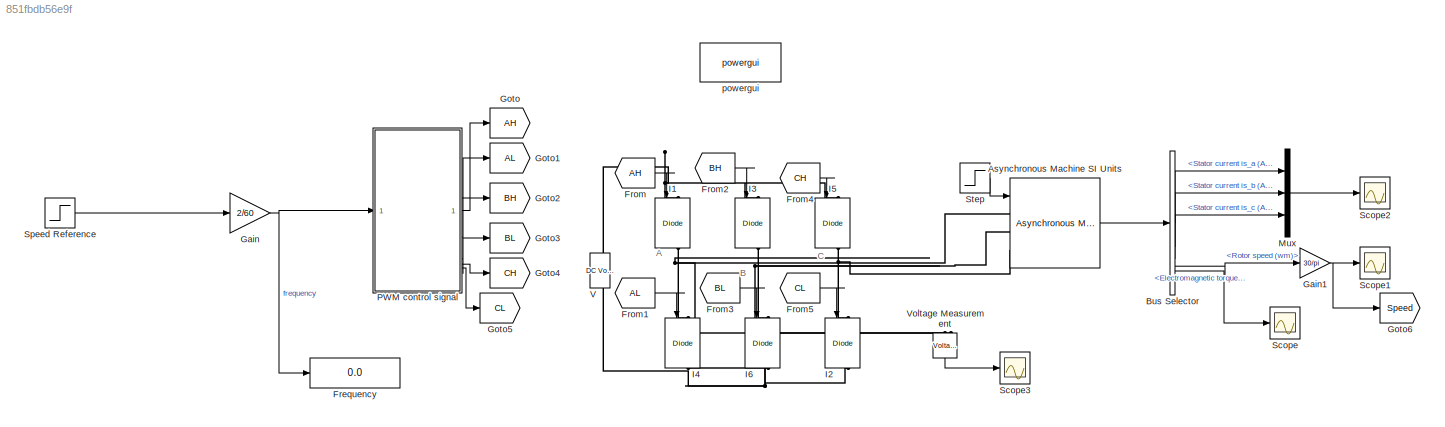
MODEL slx_851fbdb56e9f
KIND model
CONFIG AbsTol = auto
CONFIG EnableMultiTasking = off
CONFIG FixedStep = auto
CONFIG MaxStep = 5e-6
CONFIG MinStep = auto
CONFIG RelTol = 1e-3
CONFIG SampleTimeConstraint = Unconstrained
CONFIG SolverName = ode23
CONFIG StartTime = 0.0
CONFIG StopTime = 6
BLOCK [Reference] Asynchronous Machine SI Units  REF=spsAsynchronousMachineSIUnitsLib/Asynchronous Machine
SI Units
  LibrarySourceBlock = sps_lib/Electrical Machines/Asynchronous Machine\nSI Units
  SourceBlock = spsAsynchronousMachineSIUnitsLib/Asynchronous Machine\nSI Units
  SourceType = Asynchronous Machine
BLOCK [BusSelector] Bus Selector
  OutputSignals = Stator measurements.Stator current is_a (A),Stator measurements.Stator current is_b (A),Stator measurements.Stator current is_c (A),Mechanical.Rotor speed (wm),Mechanical.Electromagnetic torque Te (N*m)
BLOCK [Display] Frequency
  Decimation = 1
BLOCK [From] From
  GotoTag = AH
BLOCK [From] From1
  GotoTag = AL
BLOCK [From] From2
  GotoTag = BH
BLOCK [From] From3
  GotoTag = BL
BLOCK [From] From4
  GotoTag = CH
BLOCK [From] From5
  GotoTag = CL
BLOCK [Gain] Gain
  Gain = 2/60
BLOCK [Gain] Gain1
  Gain = 30/pi
BLOCK [Goto] Goto
  GotoTag = AH
BLOCK [Goto] Goto1
  GotoTag = AL
BLOCK [Goto] Goto2
  GotoTag = BH
BLOCK [Goto] Goto3
  GotoTag = BL
BLOCK [Goto] Goto4
  GotoTag = CH
BLOCK [Goto] Goto5
  GotoTag = CL
BLOCK [Goto] Goto6
  GotoTag = Speed
BLOCK [Reference] I1  REF=spsIGBTDiodeLib/IGBT//Diode
  LibrarySourceBlock = sps_lib/Power Electronics/IGBT//Diode
  NameLocation = left
  SourceBlock = spsIGBTDiodeLib/IGBT//Diode
  SourceType = IGBT/Diode
BLOCK [Reference] I2  REF=spsIGBTDiodeLib/IGBT//Diode
  LibrarySourceBlock = sps_lib/Power Electronics/IGBT//Diode
  NameLocation = left
  SourceBlock = spsIGBTDiodeLib/IGBT//Diode
  SourceType = IGBT/Diode
BLOCK [Reference] I3  REF=spsIGBTDiodeLib/IGBT//Diode
  LibrarySourceBlock = sps_lib/Power Electronics/IGBT//Diode
  NameLocation = left
  SourceBlock = spsIGBTDiodeLib/IGBT//Diode
  SourceType = IGBT/Diode
BLOCK [Reference] I4  REF=spsIGBTDiodeLib/IGBT//Diode
  LibrarySourceBlock = sps_lib/Power Electronics/IGBT//Diode
  NameLocation = left
  SourceBlock = spsIGBTDiodeLib/IGBT//Diode
  SourceType = IGBT/Diode
BLOCK [Reference] I5  REF=spsIGBTDiodeLib/IGBT//Diode
  LibrarySourceBlock = sps_lib/Power Electronics/IGBT//Diode
  NameLocation = left
  SourceBlock = spsIGBTDiodeLib/IGBT//Diode
  SourceType = IGBT/Diode
BLOCK [Reference] I6  REF=spsIGBTDiodeLib/IGBT//Diode
  LibrarySourceBlock = sps_lib/Power Electronics/IGBT//Diode
  NameLocation = left
  SourceBlock = spsIGBTDiodeLib/IGBT//Diode
  SourceType = IGBT/Diode
BLOCK [Mux] Mux
  DisplayOption = bar
  Inputs = 3
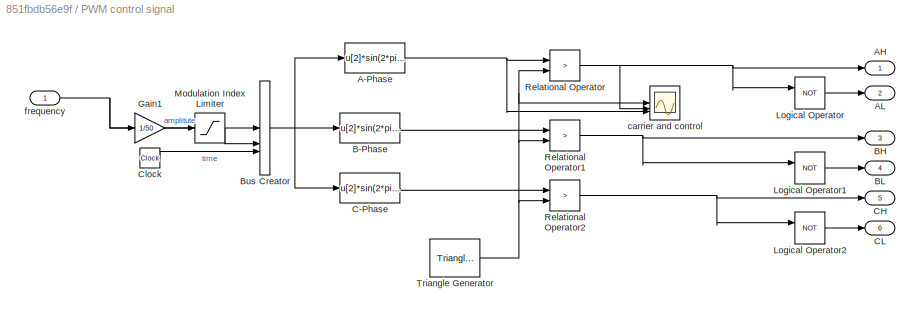
BLOCK [SubSystem] PWM control signal
BLOCK [Fcn] PWM control signal/A-Phase
  Expr = u[2]*sin(2*pi*u[1]*u[3])
BLOCK [Outport] PWM control signal/AH
BLOCK [Outport] PWM control signal/AL
  Port = 2
BLOCK [Fcn] PWM control signal/B-Phase
  Expr = u[2]*sin(2*pi*u[1]*u[3]-(2*pi/3))
BLOCK [Outport] PWM control signal/BH
  Port = 3
BLOCK [Outport] PWM control signal/BL
  Port = 4
BLOCK [BusCreator] PWM control signal/Bus Creator
  DisplayOption = bar
  InheritFromInputs = on
  Inputs = 3
BLOCK [Fcn] PWM control signal/C-Phase
  Expr = u[2]*sin(2*pi*u[1]*u[3]-(4*pi/3))
BLOCK [Outport] PWM control signal/CH
  Port = 5
BLOCK [Outport] PWM control signal/CL
  Port = 6
BLOCK [Clock] PWM control signal/Clock
BLOCK [Gain] PWM control signal/Gain1
  Gain = 1/50
BLOCK [Logic] PWM control signal/Logical Operator
  AllPortsSameDT = off
  IconShape = distinctive
  Operator = NOT
  OutDataTypeStr = boolean
BLOCK [Logic] PWM control signal/Logical Operator1
  AllPortsSameDT = off
  IconShape = distinctive
  Operator = NOT
  OutDataTypeStr = boolean
BLOCK [Logic] PWM control signal/Logical Operator2
  AllPortsSameDT = off
  IconShape = distinctive
  Operator = NOT
  OutDataTypeStr = boolean
BLOCK [Saturate] PWM control signal/Modulation Index Limiter
  LowerLimit = 0
  UpperLimit = 1
BLOCK [RelationalOperator] PWM control signal/Relational Operator
  InputSameDT = off
  Operator = >
  OutDataTypeStr = boolean
BLOCK [RelationalOperator] PWM control signal/Relational Operator1
  InputSameDT = off
  Operator = >
  OutDataTypeStr = boolean
BLOCK [RelationalOperator] PWM control signal/Relational Operator2
  InputSameDT = off
  Operator = >
  OutDataTypeStr = boolean
BLOCK [Reference] PWM control signal/Triangle Generator  REF=spsTriangleGeneratorLib/Triangle
Generator
  SourceBlock = spsTriangleGeneratorLib/Triangle\nGenerator
  SourceType = Triangle Generator
BLOCK [Scope] PWM control signal/carrier and control
  Floating = off
  NumInputPorts = 3
  ScopeSpecificationString = Simulink.scopes.TimeScopeBlockCfg('CurrentConfiguration', extmgr.ConfigurationSet(extmgr.Configuration('Core','General UI',true,'FigureColor',[1 1 1]),extmgr.Configuration('Core','Source UI',true),extmgr.Configuration('Sources','WiredSimulink',true),extmgr.Configuration('Visuals','Time Domain',true,'SerializedDisplays',{struct('MinYLimReal','-1.25','MaxYLimReal','1.25','YLabelReal','VOLTS','MinYLi...<+1926ch>
BLOCK [Inport] PWM control signal/frequency
BLOCK [Scope] Scope
  Floating = off
  NumInputPorts = 1
  ScopeSpecificationString = Simulink.scopes.TimeScopeBlockCfg('CurrentConfiguration', extmgr.ConfigurationSet(extmgr.Configuration('Core','General UI',true),extmgr.Configuration('Core','Source UI',true),extmgr.Configuration('Sources','WiredSimulink',true),extmgr.Configuration('Visuals','Time Domain',true,'SerializedDisplays',{struct('MinYLimReal','-17.05954','MaxYLimReal','15.83235','YLabelReal','','MinYLimMag','0.00000','Ma...<+1403ch>
BLOCK [Scope] Scope1
  Floating = off
  NumInputPorts = 1
  ScopeSpecificationString = Simulink.scopes.TimeScopeBlockCfg('CurrentConfiguration', extmgr.ConfigurationSet(extmgr.Configuration('Core','General UI',true),extmgr.Configuration('Core','Source UI',true),extmgr.Configuration('Sources','WiredSimulink',true,'DataLoggingVariableName','ScopeData1'),extmgr.Configuration('Visuals','Time Domain',true,'SerializedDisplays',{struct('MinYLimReal','-200.35042','MaxYLimReal','1803.15375',...<+1460ch>
BLOCK [Scope] Scope2
  Floating = off
  NumInputPorts = 1
  ScopeSpecificationString = Simulink.scopes.TimeScopeBlockCfg('CurrentConfiguration', extmgr.ConfigurationSet(extmgr.Configuration('Core','General UI',true),extmgr.Configuration('Core','Source UI',true),extmgr.Configuration('Sources','WiredSimulink',true,'DataLoggingVariableName','ScopeData2'),extmgr.Configuration('Visuals','Time Domain',true,'SerializedDisplays',{struct('MinYLimReal','-232.44062','MaxYLimReal','230.18075','...<+1473ch>
BLOCK [Scope] Scope3
  Floating = off
  NumInputPorts = 1
  ScopeSpecificationString = Simulink.scopes.TimeScopeBlockCfg('CurrentConfiguration', extmgr.ConfigurationSet(extmgr.Configuration('Core','General UI',true),extmgr.Configuration('Core','Source UI',true),extmgr.Configuration('Sources','WiredSimulink',true,'DataLoggingVariableName','ScopeData1'),extmgr.Configuration('Visuals','Time Domain',true,'SerializedDisplays',{struct('MinYLimReal','-625.11365','MaxYLimReal','625.04675','...<+1411ch>
BLOCK [Step] Speed Reference
  After = 1500
  SampleTime = 0
  Time = 0
BLOCK [Step] Step
  After = 0
  SampleTime = 0
  Time = 2
BLOCK [Reference] V  REF=spsDCVoltageSourceLib/DC Voltage Source
  LibrarySourceBlock = sps_lib/Sources/DC Voltage Source
  NameLocation = right
  SourceBlock = spsDCVoltageSourceLib/DC Voltage Source
  SourceType = DC Voltage Source
BLOCK [Reference] Voltage Measurement  REF=spsVoltageMeasurementLib/Voltage Measurement
  LibrarySourceBlock = sps_lib/Sensors and Measurements/Voltage Measurement
  NameLocation = left
  SourceBlock = spsVoltageMeasurementLib/Voltage Measurement
  SourceType = Voltage Measurement
  UserDataPersistent = on
BLOCK [Reference] powergui  REF=sps_lib/powergui
  Priority = 1
  SourceBlock = sps_lib/powergui
  SourceType = PSB option menu block
ANNOTATION (root): A
ANNOTATION (root): B
ANNOTATION (root): C
LINE Asynchronous Machine SI Units:1 -> Bus Selector:1
LINE Bus Selector:1 -> Mux:1
LINE Bus Selector:2 -> Mux:2
LINE Bus Selector:3 -> Mux:3
LINE Bus Selector:4 -> Gain1:1
LINE Bus Selector:5 -> Scope:1
LINE From1:1 -> I4:1
LINE From2:1 -> I3:1
LINE From3:1 -> I6:1
LINE From4:1 -> I5:1
LINE From5:1 -> I2:1
LINE From:1 -> I1:1
NET Gain1:1 -> Goto6:1, Scope1:1
NET Gain:1 -> Frequency:1, PWM control signal:1
LINE Mux:1 -> Scope2:1
NET PWM control signal/A-Phase:1 -> PWM control signal/Relational Operator:1, PWM control signal/carrier and control:3
LINE PWM control signal/B-Phase:1 -> PWM control signal/Relational Operator1:1
NET PWM control signal/Bus Creator:1 -> PWM control signal/A-Phase:1, PWM control signal/B-Phase:1, PWM control signal/C-Phase:1
LINE PWM control signal/C-Phase:1 -> PWM control signal/Relational Operator2:1
LINE PWM control signal/Clock:1 -> PWM control signal/Bus Creator:3
LINE PWM control signal/Gain1:1 -> PWM control signal/Modulation Index Limiter:1
LINE PWM control signal/Logical Operator1:1 -> PWM control signal/BL:1
LINE PWM control signal/Logical Operator2:1 -> PWM control signal/CL:1
LINE PWM control signal/Logical Operator:1 -> PWM control signal/AL:1
LINE PWM control signal/Modulation Index Limiter:1 -> PWM control signal/Bus Creator:2
NET PWM control signal/Relational Operator1:1 -> PWM control signal/BH:1, PWM control signal/Logical Operator1:1
NET PWM control signal/Relational Operator2:1 -> PWM control signal/CH:1, PWM control signal/Logical Operator2:1
NET PWM control signal/Relational Operator:1 -> PWM control signal/AH:1, PWM control signal/Logical Operator:1, PWM control signal/carrier and control:2
NET PWM control signal/Triangle Generator:1 -> PWM control signal/Relational Operator1:2, PWM control signal/Relational Operator2:2, PWM control signal/Relational Operator:2, PWM control signal/carrier and control:1
NET PWM control signal/frequency:1 -> PWM control signal/Bus Creator:1, PWM control signal/Gain1:1
LINE PWM control signal:1 -> Goto:1
LINE PWM control signal:2 -> Goto1:1
LINE PWM control signal:3 -> Goto2:1
LINE PWM control signal:4 -> Goto3:1
LINE PWM control signal:5 -> Goto4:1
LINE PWM control signal:6 -> Goto5:1
LINE Speed Reference:1 -> Gain:1
LINE Step:1 -> Asynchronous Machine SI Units:1
LINE Voltage Measurement:1 -> Scope3:1
PNET net1: Asynchronous Machine SI Units:LConn1 -- I1:RConn1 -- I4:LConn1 -- Voltage Measurement:LConn1
PNET net2: Asynchronous Machine SI Units:LConn2 -- I3:RConn1 -- I6:LConn1 -- Voltage Measurement:LConn2
PNET net3: Asynchronous Machine SI Units:LConn3 -- I2:LConn1 -- I5:RConn1
PNET net4: I1:LConn1 -- I3:LConn1 -- I5:LConn1 -- V:RConn1
PNET net5: I2:RConn1 -- I4:RConn1 -- I6:RConn1 -- V:LConn1
note: NET lines group one-source signal fan-out (src -> all destinations, sorted); 1:1 wires keep LINE; PNET lines group multi-terminal physical nets as a canonical sorted terminal list (undirected conserving connections); 2-terminal nets keep the pairwise PLINE form
